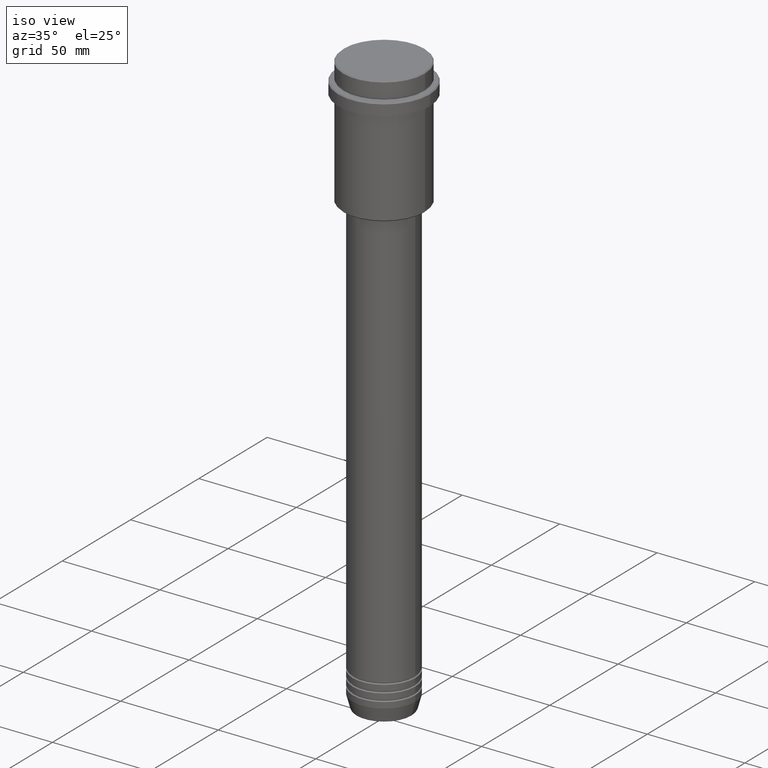
[diagram: clean part render]
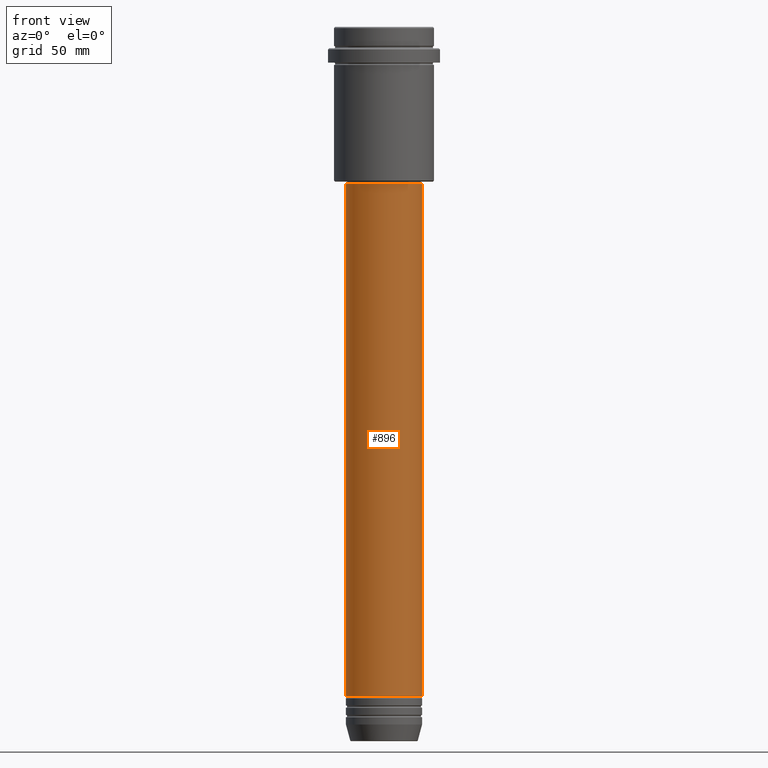
[diagram: tour spotlight — one face highlighted and labeled with its STEP entity id]
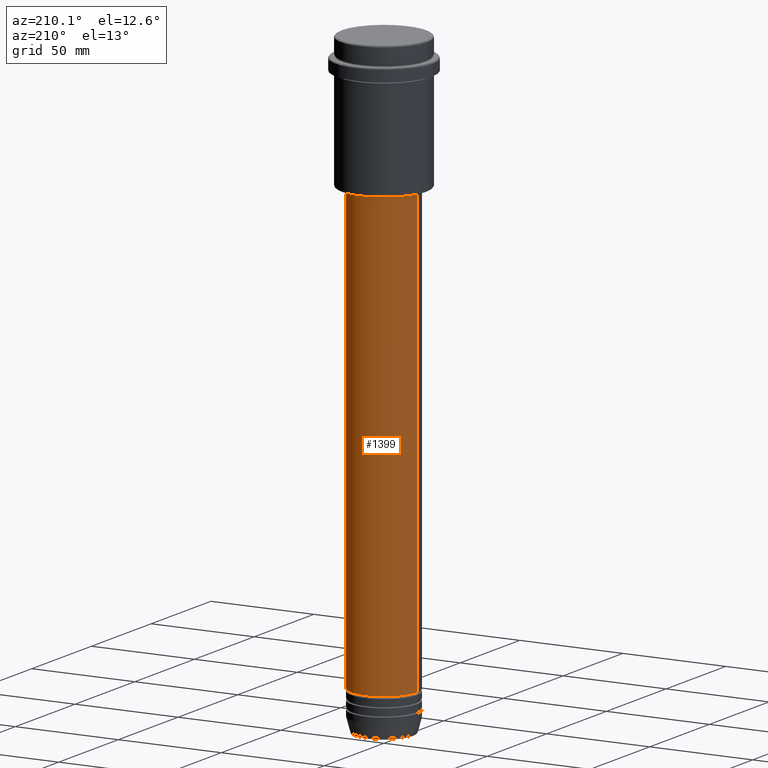
[diagram: tour spotlight — one face highlighted and labeled with its STEP entity id]
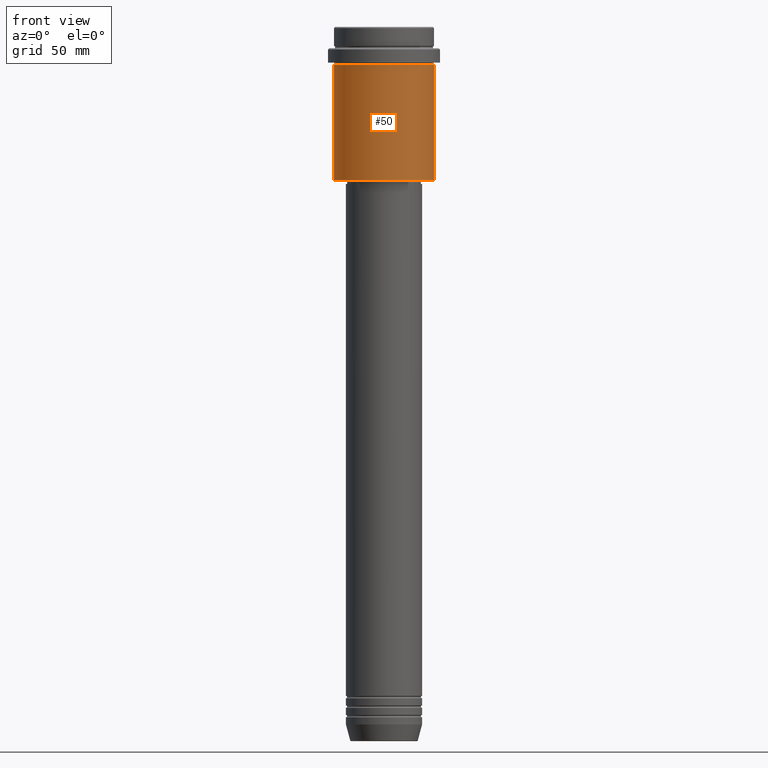
[diagram: tour spotlight — one face highlighted and labeled with its STEP entity id]
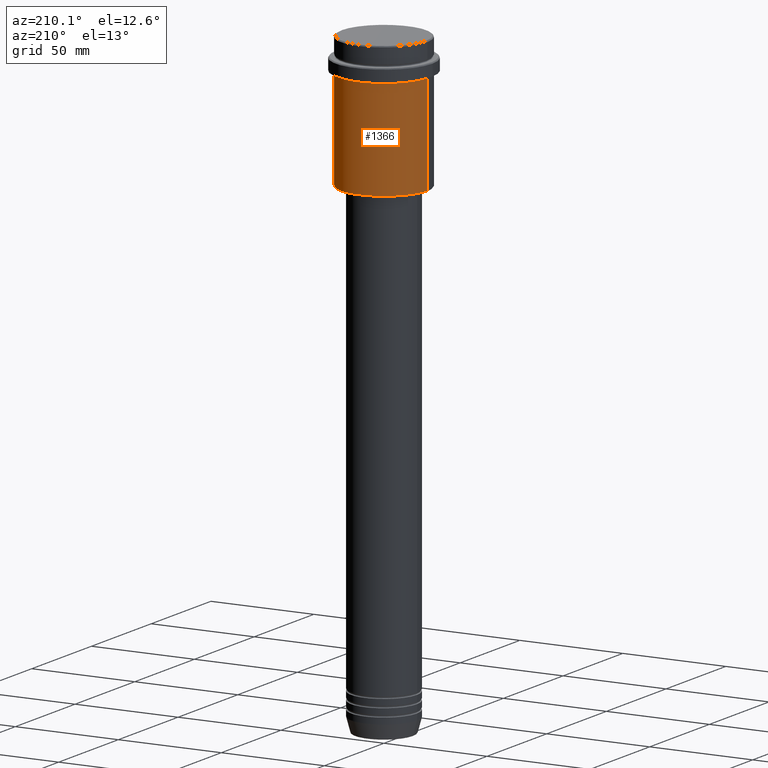
[diagram: tour spotlight — one face highlighted and labeled with its STEP entity id]
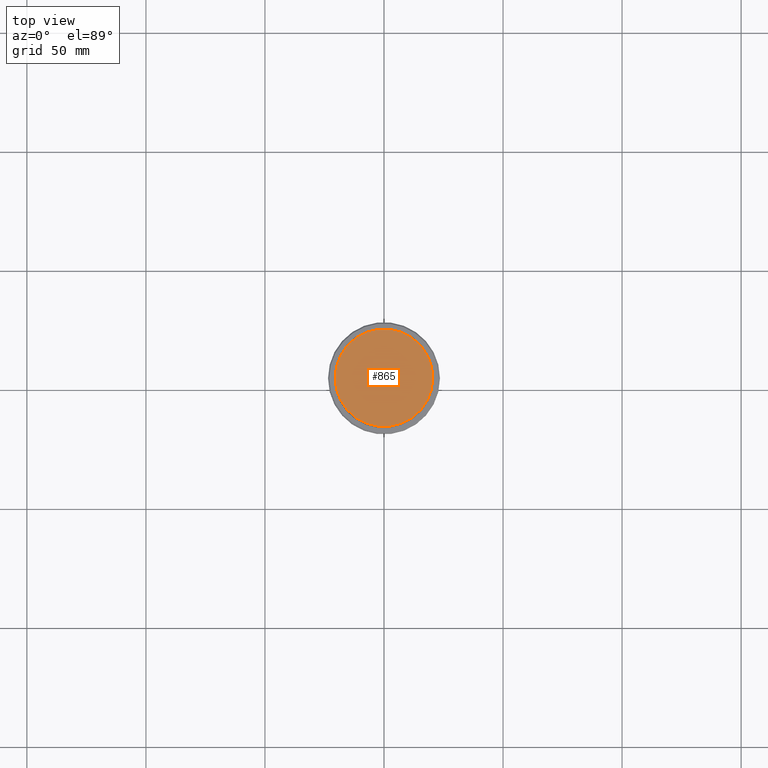
[diagram: tour spotlight — one face highlighted and labeled with its STEP entity id]
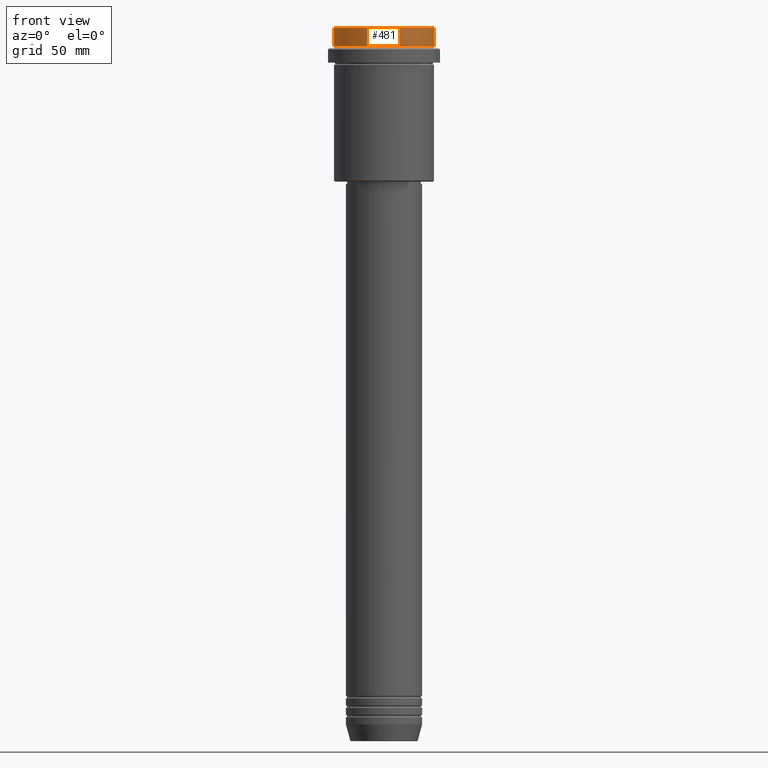
[diagram: tour spotlight — one face highlighted and labeled with its STEP entity id]
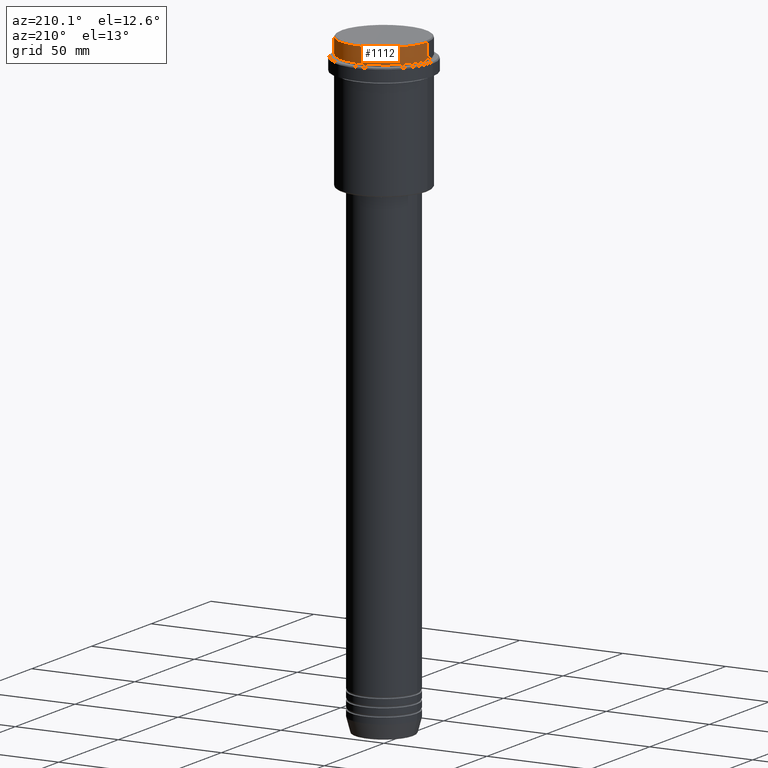
[diagram: tour spotlight — one face highlighted and labeled with its STEP entity id]
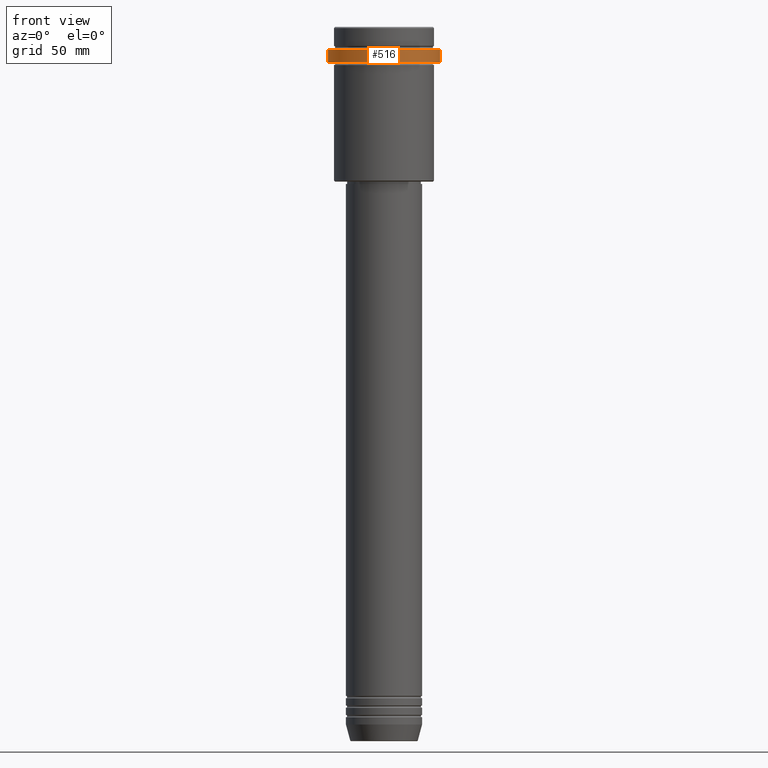
[diagram: tour spotlight — one face highlighted and labeled with its STEP entity id]
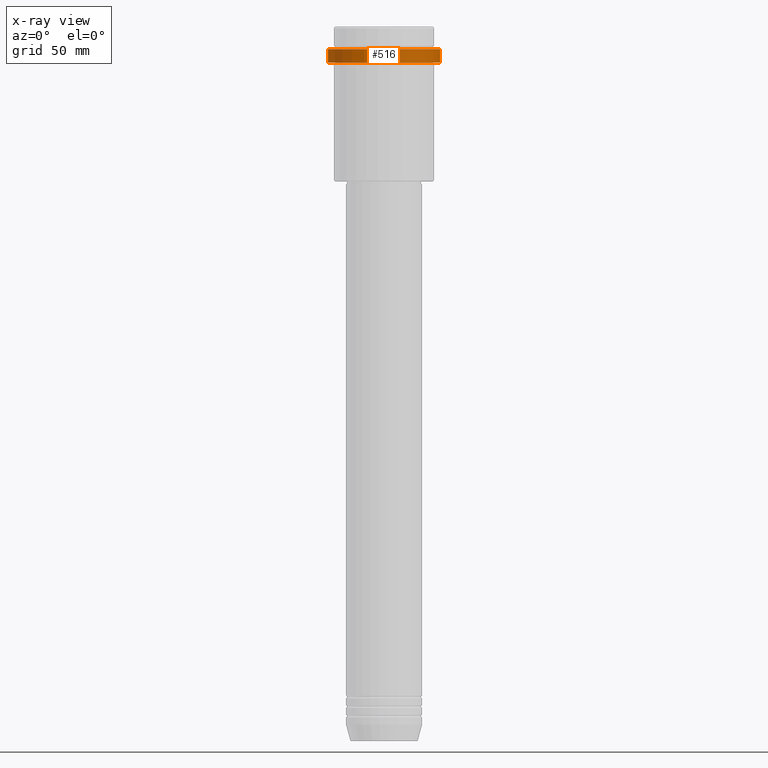
[diagram: x-ray of the same camera — body ghosted, this tour face saturated]
A machine part: a face-by-face anatomy tour. The part has 52 B-rep faces; the first image is the clean iso view, then the 8 largest visible faces are spotlighted one at a time (largest first), each with its STEP entity span.

Face 1 — front view, entity #896. In plain terms, the highlighted cylindrical surface (partial cylindrical patch) has radius 16 mm, axis along (-0, -0, 1).
Definition (entity closure, byte-faithful):
#6 = ORIENTED_EDGE ( 'NONE', *, *, #601, .T. ) ;
#11 = CARTESIAN_POINT ( 'NONE',  ( 0.000000000000000000, 0.000000000000000000, 0.000000000000000000 ) ) ;
#13 = DIRECTION ( 'NONE',  ( -0.000000000000000000, -0.000000000000000000, 1.000000000000000000 ) ) ;
#31 = LINE ( 'NONE', #272, #1325 ) ;
#82 = VERTEX_POINT ( 'NONE', #388 ) ;
#110 = CYLINDRICAL_SURFACE ( 'NONE', #689, 16.00000000000000000 ) ;
#194 = ORIENTED_EDGE ( 'NONE', *, *, #520, .T. ) ;
#216 = DIRECTION ( 'NONE',  ( 1.000000000000000000, 0.000000000000000000, 0.000000000000000000 ) ) ;
#219 = CARTESIAN_POINT ( 'NONE',  ( -16.00000000000000000, 1.959434878635765131E-15, -280.9999999999998863 ) ) ;
#266 = CARTESIAN_POINT ( 'NONE',  ( 0.000000000000000000, 0.000000000000000000, -280.9999999999998863 ) ) ;
#272 = CARTESIAN_POINT ( 'NONE',  ( 16.00000000000000000, 0.000000000000000000, 0.000000000000000000 ) ) ;
#338 = ORIENTED_EDGE ( 'NONE', *, *, #1195, .F. ) ;
#359 = DIRECTION ( 'NONE',  ( 1.000000000000000000, 0.000000000000000000, 0.000000000000000000 ) ) ;
#377 = DIRECTION ( 'NONE',  ( -0.000000000000000000, -0.000000000000000000, 1.000000000000000000 ) ) ;
#388 = CARTESIAN_POINT ( 'NONE',  ( 16.00000000000000000, 0.000000000000000000, -280.9999999999998863 ) ) ;
#415 = CIRCLE ( 'NONE', #887, 16.00000000000000355 ) ;
#445 = CARTESIAN_POINT ( 'NONE',  ( -16.00000000000000355, 1.959434878635765526E-15, -65.99999999999991473 ) ) ;
#451 = EDGE_CURVE ( 'NONE', #912, #847, #415, .T. ) ;
#520 = EDGE_CURVE ( 'NONE', #1293, #82, #1393, .T. ) ;
#576 = DIRECTION ( 'NONE',  ( -0.000000000000000000, -0.000000000000000000, 1.000000000000000000 ) ) ;
#578 = ORIENTED_EDGE ( 'NONE', *, *, #451, .F. ) ;
#601 = EDGE_CURVE ( 'NONE', #82, #847, #31, .T. ) ;
#689 = AXIS2_PLACEMENT_3D ( 'NONE', #11, #1409, #216 ) ;
#741 = CARTESIAN_POINT ( 'NONE',  ( 16.00000000000000355, 0.000000000000000000, -65.99999999999991473 ) ) ;
#847 = VERTEX_POINT ( 'NONE', #741 ) ;
#858 = FACE_OUTER_BOUND ( 'NONE', #1100, .T. ) ;
#887 = AXIS2_PLACEMENT_3D ( 'NONE', #1072, #13, #1064 ) ;
#896 = ADVANCED_FACE ( 'NONE', ( #858 ), #110, .T. ) ;
#912 = VERTEX_POINT ( 'NONE', #445 ) ;
#941 = AXIS2_PLACEMENT_3D ( 'NONE', #266, #576, #359 ) ;
#950 = DIRECTION ( 'NONE',  ( -0.000000000000000000, -0.000000000000000000, 1.000000000000000000 ) ) ;
#1064 = DIRECTION ( 'NONE',  ( 1.000000000000000000, 0.000000000000000000, 0.000000000000000000 ) ) ;
#1072 = CARTESIAN_POINT ( 'NONE',  ( 0.000000000000000000, 0.000000000000000000, -65.99999999999991473 ) ) ;
#1100 = EDGE_LOOP ( 'NONE', ( #338, #194, #6, #578 ) ) ;
#1195 = EDGE_CURVE ( 'NONE', #1293, #912, #1363, .T. ) ;
#1293 = VERTEX_POINT ( 'NONE', #219 ) ;
#1325 = VECTOR ( 'NONE', #377, 1000.000000000000000 ) ;
#1343 = VECTOR ( 'NONE', #950, 1000.000000000000000 ) ;
#1363 = LINE ( 'NONE', #1372, #1343 ) ;
#1372 = CARTESIAN_POINT ( 'NONE',  ( -16.00000000000000000, 1.959434878635765131E-15, 0.000000000000000000 ) ) ;
#1393 = CIRCLE ( 'NONE', #941, 16.00000000000000000 ) ;
#1409 = DIRECTION ( 'NONE',  ( -0.000000000000000000, -0.000000000000000000, 1.000000000000000000 ) ) ;

Face 2 — auxiliary view, entity #1399. In plain terms, the highlighted cylindrical surface (partial cylindrical patch) has radius 16 mm, axis along (-0, -0, 1).
Definition (entity closure, byte-faithful):
#8 = DIRECTION ( 'NONE',  ( 1.000000000000000000, 0.000000000000000000, 0.000000000000000000 ) ) ;
#31 = LINE ( 'NONE', #272, #1325 ) ;
#82 = VERTEX_POINT ( 'NONE', #388 ) ;
#155 = EDGE_LOOP ( 'NONE', ( #275, #524, #1122, #1193 ) ) ;
#191 = CARTESIAN_POINT ( 'NONE',  ( 0.000000000000000000, 0.000000000000000000, -65.99999999999991473 ) ) ;
#193 = CARTESIAN_POINT ( 'NONE',  ( 0.000000000000000000, 0.000000000000000000, -280.9999999999998863 ) ) ;
#219 = CARTESIAN_POINT ( 'NONE',  ( -16.00000000000000000, 1.959434878635765131E-15, -280.9999999999998863 ) ) ;
#231 = CIRCLE ( 'NONE', #1388, 16.00000000000000000 ) ;
#251 = DIRECTION ( 'NONE',  ( -0.000000000000000000, -0.000000000000000000, 1.000000000000000000 ) ) ;
#272 = CARTESIAN_POINT ( 'NONE',  ( 16.00000000000000000, 0.000000000000000000, 0.000000000000000000 ) ) ;
#275 = ORIENTED_EDGE ( 'NONE', *, *, #1139, .T. ) ;
#283 = DIRECTION ( 'NONE',  ( 1.000000000000000000, 0.000000000000000000, 0.000000000000000000 ) ) ;
#307 = EDGE_CURVE ( 'NONE', #847, #912, #821, .T. ) ;
#377 = DIRECTION ( 'NONE',  ( -0.000000000000000000, -0.000000000000000000, 1.000000000000000000 ) ) ;
#388 = CARTESIAN_POINT ( 'NONE',  ( 16.00000000000000000, 0.000000000000000000, -280.9999999999998863 ) ) ;
#444 = CARTESIAN_POINT ( 'NONE',  ( 0.000000000000000000, 0.000000000000000000, 0.000000000000000000 ) ) ;
#445 = CARTESIAN_POINT ( 'NONE',  ( -16.00000000000000355, 1.959434878635765526E-15, -65.99999999999991473 ) ) ;
#524 = ORIENTED_EDGE ( 'NONE', *, *, #1195, .T. ) ;
#601 = EDGE_CURVE ( 'NONE', #82, #847, #31, .T. ) ;
#606 = AXIS2_PLACEMENT_3D ( 'NONE', #444, #251, #8 ) ;
#613 = DIRECTION ( 'NONE',  ( -0.000000000000000000, -0.000000000000000000, 1.000000000000000000 ) ) ;
#645 = FACE_OUTER_BOUND ( 'NONE', #155, .T. ) ;
#732 = DIRECTION ( 'NONE',  ( 1.000000000000000000, 0.000000000000000000, 0.000000000000000000 ) ) ;
#741 = CARTESIAN_POINT ( 'NONE',  ( 16.00000000000000355, 0.000000000000000000, -65.99999999999991473 ) ) ;
#821 = CIRCLE ( 'NONE', #1144, 16.00000000000000355 ) ;
#847 = VERTEX_POINT ( 'NONE', #741 ) ;
#912 = VERTEX_POINT ( 'NONE', #445 ) ;
#950 = DIRECTION ( 'NONE',  ( -0.000000000000000000, -0.000000000000000000, 1.000000000000000000 ) ) ;
#1122 = ORIENTED_EDGE ( 'NONE', *, *, #307, .F. ) ;
#1139 = EDGE_CURVE ( 'NONE', #82, #1293, #231, .T. ) ;
#1144 = AXIS2_PLACEMENT_3D ( 'NONE', #191, #1252, #283 ) ;
#1193 = ORIENTED_EDGE ( 'NONE', *, *, #601, .F. ) ;
#1195 = EDGE_CURVE ( 'NONE', #1293, #912, #1363, .T. ) ;
#1252 = DIRECTION ( 'NONE',  ( -0.000000000000000000, -0.000000000000000000, 1.000000000000000000 ) ) ;
#1293 = VERTEX_POINT ( 'NONE', #219 ) ;
#1325 = VECTOR ( 'NONE', #377, 1000.000000000000000 ) ;
#1343 = VECTOR ( 'NONE', #950, 1000.000000000000000 ) ;
#1363 = LINE ( 'NONE', #1372, #1343 ) ;
#1372 = CARTESIAN_POINT ( 'NONE',  ( -16.00000000000000000, 1.959434878635765131E-15, 0.000000000000000000 ) ) ;
#1388 = AXIS2_PLACEMENT_3D ( 'NONE', #193, #613, #732 ) ;
#1399 = ADVANCED_FACE ( 'NONE', ( #645 ), #1417, .T. ) ;
#1417 = CYLINDRICAL_SURFACE ( 'NONE', #606, 16.00000000000000000 ) ;

Face 3 — front view, entity #50. In plain terms, the highlighted cylindrical surface (partial cylindrical patch) has radius 21 mm, axis along (-0, -0, 1).
Definition (entity closure, byte-faithful):
#27 = EDGE_LOOP ( 'NONE', ( #990, #87, #1222, #1129 ) ) ;
#50 = ADVANCED_FACE ( 'NONE', ( #1291 ), #646, .T. ) ;
#87 = ORIENTED_EDGE ( 'NONE', *, *, #881, .T. ) ;
#128 = CARTESIAN_POINT ( 'NONE',  ( 20.99999999999999645, 0.000000000000000000, -16.00000000000000355 ) ) ;
#141 = VECTOR ( 'NONE', #427, 1000.000000000000000 ) ;
#205 = CARTESIAN_POINT ( 'NONE',  ( 0.000000000000000000, 0.000000000000000000, 0.000000000000000000 ) ) ;
#335 = DIRECTION ( 'NONE',  ( -1.000000000000000000, 0.000000000000000000, 0.000000000000000000 ) ) ;
#424 = AXIS2_PLACEMENT_3D ( 'NONE', #658, #1280, #335 ) ;
#427 = DIRECTION ( 'NONE',  ( -0.000000000000000000, -0.000000000000000000, 1.000000000000000000 ) ) ;
#446 = CIRCLE ( 'NONE', #424, 20.99999999999999645 ) ;
#455 = VERTEX_POINT ( 'NONE', #994 ) ;
#508 = DIRECTION ( 'NONE',  ( 1.000000000000000000, 0.000000000000000000, 0.000000000000000000 ) ) ;
#538 = CARTESIAN_POINT ( 'NONE',  ( -20.99999999999999645, 2.571758278209441267E-15, 0.000000000000000000 ) ) ;
#554 = DIRECTION ( 'NONE',  ( 1.000000000000000000, 0.000000000000000000, 0.000000000000000000 ) ) ;
#597 = LINE ( 'NONE', #1037, #1187 ) ;
#641 = CARTESIAN_POINT ( 'NONE',  ( 20.99999999999999645, 0.000000000000000000, -64.49999999999992895 ) ) ;
#646 = CYLINDRICAL_SURFACE ( 'NONE', #1273, 20.99999999999999645 ) ;
#658 = CARTESIAN_POINT ( 'NONE',  ( 0.000000000000000000, 0.000000000000000000, -64.49999999999992895 ) ) ;
#692 = CARTESIAN_POINT ( 'NONE',  ( -20.99999999999999645, 2.571758278209441267E-15, -64.49999999999992895 ) ) ;
#701 = CARTESIAN_POINT ( 'NONE',  ( 0.000000000000000000, 0.000000000000000000, -16.00000000000000355 ) ) ;
#709 = DIRECTION ( 'NONE',  ( -0.000000000000000000, -0.000000000000000000, 1.000000000000000000 ) ) ;
#779 = EDGE_CURVE ( 'NONE', #782, #946, #597, .T. ) ;
#782 = VERTEX_POINT ( 'NONE', #641 ) ;
#881 = EDGE_CURVE ( 'NONE', #1071, #782, #446, .T. ) ;
#930 = DIRECTION ( 'NONE',  ( -0.000000000000000000, -0.000000000000000000, 1.000000000000000000 ) ) ;
#946 = VERTEX_POINT ( 'NONE', #128 ) ;
#978 = DIRECTION ( 'NONE',  ( -0.000000000000000000, -0.000000000000000000, 1.000000000000000000 ) ) ;
#990 = ORIENTED_EDGE ( 'NONE', *, *, #1313, .F. ) ;
#994 = CARTESIAN_POINT ( 'NONE',  ( -20.99999999999999645, 2.571758278209441267E-15, -16.00000000000000355 ) ) ;
#999 = CIRCLE ( 'NONE', #1405, 20.99999999999999645 ) ;
#1037 = CARTESIAN_POINT ( 'NONE',  ( 20.99999999999999645, 0.000000000000000000, 0.000000000000000000 ) ) ;
#1071 = VERTEX_POINT ( 'NONE', #692 ) ;
#1129 = ORIENTED_EDGE ( 'NONE', *, *, #1214, .F. ) ;
#1187 = VECTOR ( 'NONE', #930, 1000.000000000000000 ) ;
#1214 = EDGE_CURVE ( 'NONE', #455, #946, #999, .T. ) ;
#1222 = ORIENTED_EDGE ( 'NONE', *, *, #779, .T. ) ;
#1273 = AXIS2_PLACEMENT_3D ( 'NONE', #205, #978, #554 ) ;
#1279 = LINE ( 'NONE', #538, #141 ) ;
#1280 = DIRECTION ( 'NONE',  ( -0.000000000000000000, -0.000000000000000000, 1.000000000000000000 ) ) ;
#1291 = FACE_OUTER_BOUND ( 'NONE', #27, .T. ) ;
#1313 = EDGE_CURVE ( 'NONE', #1071, #455, #1279, .T. ) ;
#1405 = AXIS2_PLACEMENT_3D ( 'NONE', #701, #709, #508 ) ;

Face 4 — auxiliary view, entity #1366. In plain terms, the highlighted cylindrical surface (partial cylindrical patch) has radius 21 mm, axis along (-0, -0, 1).
Definition (entity closure, byte-faithful):
#28 = DIRECTION ( 'NONE',  ( -1.000000000000000000, 0.000000000000000000, 0.000000000000000000 ) ) ;
#44 = CARTESIAN_POINT ( 'NONE',  ( 0.000000000000000000, 0.000000000000000000, -16.00000000000000355 ) ) ;
#93 = CYLINDRICAL_SURFACE ( 'NONE', #500, 20.99999999999999645 ) ;
#128 = CARTESIAN_POINT ( 'NONE',  ( 20.99999999999999645, 0.000000000000000000, -16.00000000000000355 ) ) ;
#141 = VECTOR ( 'NONE', #427, 1000.000000000000000 ) ;
#317 = AXIS2_PLACEMENT_3D ( 'NONE', #44, #908, #918 ) ;
#343 = ORIENTED_EDGE ( 'NONE', *, *, #779, .F. ) ;
#366 = EDGE_LOOP ( 'NONE', ( #1221, #1213, #1013, #343 ) ) ;
#427 = DIRECTION ( 'NONE',  ( -0.000000000000000000, -0.000000000000000000, 1.000000000000000000 ) ) ;
#455 = VERTEX_POINT ( 'NONE', #994 ) ;
#500 = AXIS2_PLACEMENT_3D ( 'NONE', #1299, #851, #530 ) ;
#530 = DIRECTION ( 'NONE',  ( 1.000000000000000000, 0.000000000000000000, 0.000000000000000000 ) ) ;
#538 = CARTESIAN_POINT ( 'NONE',  ( -20.99999999999999645, 2.571758278209441267E-15, 0.000000000000000000 ) ) ;
#569 = CIRCLE ( 'NONE', #885, 20.99999999999999645 ) ;
#597 = LINE ( 'NONE', #1037, #1187 ) ;
#641 = CARTESIAN_POINT ( 'NONE',  ( 20.99999999999999645, 0.000000000000000000, -64.49999999999992895 ) ) ;
#692 = CARTESIAN_POINT ( 'NONE',  ( -20.99999999999999645, 2.571758278209441267E-15, -64.49999999999992895 ) ) ;
#696 = CIRCLE ( 'NONE', #317, 20.99999999999999645 ) ;
#779 = EDGE_CURVE ( 'NONE', #782, #946, #597, .T. ) ;
#782 = VERTEX_POINT ( 'NONE', #641 ) ;
#851 = DIRECTION ( 'NONE',  ( -0.000000000000000000, -0.000000000000000000, 1.000000000000000000 ) ) ;
#878 = CARTESIAN_POINT ( 'NONE',  ( 0.000000000000000000, 0.000000000000000000, -64.49999999999992895 ) ) ;
#885 = AXIS2_PLACEMENT_3D ( 'NONE', #878, #888, #28 ) ;
#888 = DIRECTION ( 'NONE',  ( -0.000000000000000000, -0.000000000000000000, 1.000000000000000000 ) ) ;
#908 = DIRECTION ( 'NONE',  ( -0.000000000000000000, -0.000000000000000000, 1.000000000000000000 ) ) ;
#918 = DIRECTION ( 'NONE',  ( 1.000000000000000000, 0.000000000000000000, 0.000000000000000000 ) ) ;
#930 = DIRECTION ( 'NONE',  ( -0.000000000000000000, -0.000000000000000000, 1.000000000000000000 ) ) ;
#946 = VERTEX_POINT ( 'NONE', #128 ) ;
#994 = CARTESIAN_POINT ( 'NONE',  ( -20.99999999999999645, 2.571758278209441267E-15, -16.00000000000000355 ) ) ;
#1013 = ORIENTED_EDGE ( 'NONE', *, *, #1035, .F. ) ;
#1035 = EDGE_CURVE ( 'NONE', #946, #455, #696, .T. ) ;
#1037 = CARTESIAN_POINT ( 'NONE',  ( 20.99999999999999645, 0.000000000000000000, 0.000000000000000000 ) ) ;
#1071 = VERTEX_POINT ( 'NONE', #692 ) ;
#1075 = FACE_OUTER_BOUND ( 'NONE', #366, .T. ) ;
#1187 = VECTOR ( 'NONE', #930, 1000.000000000000000 ) ;
#1213 = ORIENTED_EDGE ( 'NONE', *, *, #1313, .T. ) ;
#1221 = ORIENTED_EDGE ( 'NONE', *, *, #1404, .T. ) ;
#1279 = LINE ( 'NONE', #538, #141 ) ;
#1299 = CARTESIAN_POINT ( 'NONE',  ( 0.000000000000000000, 0.000000000000000000, 0.000000000000000000 ) ) ;
#1313 = EDGE_CURVE ( 'NONE', #1071, #455, #1279, .T. ) ;
#1366 = ADVANCED_FACE ( 'NONE', ( #1075 ), #93, .T. ) ;
#1404 = EDGE_CURVE ( 'NONE', #782, #1071, #569, .T. ) ;

Face 5 — top view, entity #865. In plain terms, the highlighted planar face has unit normal (0, -0, 1).
Definition (entity closure, byte-faithful):
#2 = DIRECTION ( 'NONE',  ( 1.000000000000000000, 0.000000000000000000, 0.000000000000000000 ) ) ;
#156 = ORIENTED_EDGE ( 'NONE', *, *, #797, .T. ) ;
#177 = DIRECTION ( 'NONE',  ( 1.000000000000000000, 0.000000000000000000, 0.000000000000000000 ) ) ;
#268 = EDGE_CURVE ( 'NONE', #1109, #743, #1294, .T. ) ;
#328 = FACE_OUTER_BOUND ( 'NONE', #562, .T. ) ;
#347 = ORIENTED_EDGE ( 'NONE', *, *, #268, .T. ) ;
#425 = CARTESIAN_POINT ( 'NONE',  ( 0.000000000000000000, 0.000000000000000000, 0.000000000000000000 ) ) ;
#472 = AXIS2_PLACEMENT_3D ( 'NONE', #766, #750, #549 ) ;
#549 = DIRECTION ( 'NONE',  ( 1.000000000000000000, 0.000000000000000000, 0.000000000000000000 ) ) ;
#551 = AXIS2_PLACEMENT_3D ( 'NONE', #425, #559, #2 ) ;
#559 = DIRECTION ( 'NONE',  ( -0.000000000000000000, -0.000000000000000000, 1.000000000000000000 ) ) ;
#562 = EDGE_LOOP ( 'NONE', ( #156, #347 ) ) ;
#609 = AXIS2_PLACEMENT_3D ( 'NONE', #829, #808, #177 ) ;
#687 = CARTESIAN_POINT ( 'NONE',  ( 20.50000000000001776, 2.541142108230758663E-15, 0.000000000000000000 ) ) ;
#743 = VERTEX_POINT ( 'NONE', #945 ) ;
#750 = DIRECTION ( 'NONE',  ( 0.000000000000000000, -0.000000000000000000, 1.000000000000000000 ) ) ;
#766 = CARTESIAN_POINT ( 'NONE',  ( 0.000000000000000000, 0.000000000000000000, 0.000000000000000000 ) ) ;
#797 = EDGE_CURVE ( 'NONE', #743, #1109, #983, .T. ) ;
#808 = DIRECTION ( 'NONE',  ( -0.000000000000000000, -0.000000000000000000, 1.000000000000000000 ) ) ;
#829 = CARTESIAN_POINT ( 'NONE',  ( 0.000000000000000000, 0.000000000000000000, 0.000000000000000000 ) ) ;
#865 = ADVANCED_FACE ( 'NONE', ( #328 ), #1301, .T. ) ;
#945 = CARTESIAN_POINT ( 'NONE',  ( -20.50000000000001776, 0.000000000000000000, 0.000000000000000000 ) ) ;
#983 = CIRCLE ( 'NONE', #551, 20.50000000000001776 ) ;
#1109 = VERTEX_POINT ( 'NONE', #687 ) ;
#1294 = CIRCLE ( 'NONE', #609, 20.50000000000001776 ) ;
#1301 = PLANE ( 'NONE',  #472 ) ;

Face 6 — front view, entity #481. In plain terms, the highlighted cylindrical surface (partial cylindrical patch) has radius 21 mm, axis along (-0, -0, 1).
Definition (entity closure, byte-faithful):
#5 = DIRECTION ( 'NONE',  ( 1.000000000000000000, 0.000000000000000000, 0.000000000000000000 ) ) ;
#7 = ORIENTED_EDGE ( 'NONE', *, *, #755, .F. ) ;
#60 = VERTEX_POINT ( 'NONE', #1385 ) ;
#79 = LINE ( 'NONE', #517, #260 ) ;
#91 = VECTOR ( 'NONE', #224, 1000.000000000000000 ) ;
#129 = FACE_OUTER_BOUND ( 'NONE', #568, .T. ) ;
#224 = DIRECTION ( 'NONE',  ( -0.000000000000000000, -0.000000000000000000, 1.000000000000000000 ) ) ;
#260 = VECTOR ( 'NONE', #951, 1000.000000000000000 ) ;
#277 = CIRCLE ( 'NONE', #1073, 20.99999999999999645 ) ;
#329 = CIRCLE ( 'NONE', #1296, 20.99999999999999645 ) ;
#363 = CARTESIAN_POINT ( 'NONE',  ( 20.99999999999999645, 0.000000000000000000, -7.999999999999998224 ) ) ;
#369 = DIRECTION ( 'NONE',  ( 1.000000000000000000, 0.000000000000000000, 0.000000000000000000 ) ) ;
#390 = DIRECTION ( 'NONE',  ( 1.000000000000000000, 0.000000000000000000, 0.000000000000000000 ) ) ;
#481 = ADVANCED_FACE ( 'NONE', ( #129 ), #561, .T. ) ;
#517 = CARTESIAN_POINT ( 'NONE',  ( -20.99999999999999645, 2.571758278209441267E-15, 0.000000000000000000 ) ) ;
#542 = CARTESIAN_POINT ( 'NONE',  ( 0.000000000000000000, 0.000000000000000000, 0.000000000000000000 ) ) ;
#561 = CYLINDRICAL_SURFACE ( 'NONE', #1295, 20.99999999999999645 ) ;
#568 = EDGE_LOOP ( 'NONE', ( #7, #876, #659, #915 ) ) ;
#595 = VERTEX_POINT ( 'NONE', #1126 ) ;
#659 = ORIENTED_EDGE ( 'NONE', *, *, #1394, .T. ) ;
#672 = VERTEX_POINT ( 'NONE', #1070 ) ;
#715 = EDGE_CURVE ( 'NONE', #60, #595, #329, .T. ) ;
#719 = CARTESIAN_POINT ( 'NONE',  ( 0.000000000000000000, 0.000000000000000000, -0.4999999999999518718 ) ) ;
#755 = EDGE_CURVE ( 'NONE', #672, #595, #79, .T. ) ;
#855 = LINE ( 'NONE', #1192, #91 ) ;
#876 = ORIENTED_EDGE ( 'NONE', *, *, #1084, .T. ) ;
#915 = ORIENTED_EDGE ( 'NONE', *, *, #715, .T. ) ;
#939 = DIRECTION ( 'NONE',  ( 0.000000000000000000, 0.000000000000000000, -1.000000000000000000 ) ) ;
#951 = DIRECTION ( 'NONE',  ( -0.000000000000000000, -0.000000000000000000, 1.000000000000000000 ) ) ;
#974 = VERTEX_POINT ( 'NONE', #363 ) ;
#1070 = CARTESIAN_POINT ( 'NONE',  ( -20.99999999999999645, 2.571758278209441267E-15, -7.999999999999998224 ) ) ;
#1073 = AXIS2_PLACEMENT_3D ( 'NONE', #1243, #1124, #369 ) ;
#1084 = EDGE_CURVE ( 'NONE', #672, #974, #277, .T. ) ;
#1124 = DIRECTION ( 'NONE',  ( -0.000000000000000000, -0.000000000000000000, 1.000000000000000000 ) ) ;
#1126 = CARTESIAN_POINT ( 'NONE',  ( -20.99999999999999645, 2.571758278209441267E-15, -0.4999999999999518718 ) ) ;
#1192 = CARTESIAN_POINT ( 'NONE',  ( 20.99999999999999645, 0.000000000000000000, 0.000000000000000000 ) ) ;
#1243 = CARTESIAN_POINT ( 'NONE',  ( 0.000000000000000000, 0.000000000000000000, -7.999999999999998224 ) ) ;
#1295 = AXIS2_PLACEMENT_3D ( 'NONE', #542, #1412, #5 ) ;
#1296 = AXIS2_PLACEMENT_3D ( 'NONE', #719, #939, #390 ) ;
#1385 = CARTESIAN_POINT ( 'NONE',  ( 20.99999999999999645, 0.000000000000000000, -0.4999999999999518718 ) ) ;
#1394 = EDGE_CURVE ( 'NONE', #974, #60, #855, .T. ) ;
#1412 = DIRECTION ( 'NONE',  ( -0.000000000000000000, -0.000000000000000000, 1.000000000000000000 ) ) ;

Face 7 — auxiliary view, entity #1112. In plain terms, the highlighted cylindrical surface (partial cylindrical patch) has radius 21 mm, axis along (-0, -0, 1).
Definition (entity closure, byte-faithful):
#1 = DIRECTION ( 'NONE',  ( 0.000000000000000000, 0.000000000000000000, -1.000000000000000000 ) ) ;
#35 = ORIENTED_EDGE ( 'NONE', *, *, #97, .T. ) ;
#39 = EDGE_CURVE ( 'NONE', #595, #60, #144, .T. ) ;
#60 = VERTEX_POINT ( 'NONE', #1385 ) ;
#79 = LINE ( 'NONE', #517, #260 ) ;
#91 = VECTOR ( 'NONE', #224, 1000.000000000000000 ) ;
#97 = EDGE_CURVE ( 'NONE', #974, #672, #654, .T. ) ;
#109 = CARTESIAN_POINT ( 'NONE',  ( 0.000000000000000000, 0.000000000000000000, -0.4999999999999518718 ) ) ;
#114 = AXIS2_PLACEMENT_3D ( 'NONE', #458, #1328, #295 ) ;
#130 = ORIENTED_EDGE ( 'NONE', *, *, #39, .T. ) ;
#144 = CIRCLE ( 'NONE', #302, 20.99999999999999645 ) ;
#149 = FACE_OUTER_BOUND ( 'NONE', #593, .T. ) ;
#224 = DIRECTION ( 'NONE',  ( -0.000000000000000000, -0.000000000000000000, 1.000000000000000000 ) ) ;
#260 = VECTOR ( 'NONE', #951, 1000.000000000000000 ) ;
#271 = CYLINDRICAL_SURFACE ( 'NONE', #114, 20.99999999999999645 ) ;
#295 = DIRECTION ( 'NONE',  ( 1.000000000000000000, 0.000000000000000000, 0.000000000000000000 ) ) ;
#302 = AXIS2_PLACEMENT_3D ( 'NONE', #109, #1, #1408 ) ;
#322 = DIRECTION ( 'NONE',  ( -0.000000000000000000, -0.000000000000000000, 1.000000000000000000 ) ) ;
#363 = CARTESIAN_POINT ( 'NONE',  ( 20.99999999999999645, 0.000000000000000000, -7.999999999999998224 ) ) ;
#421 = DIRECTION ( 'NONE',  ( 1.000000000000000000, 0.000000000000000000, 0.000000000000000000 ) ) ;
#458 = CARTESIAN_POINT ( 'NONE',  ( 0.000000000000000000, 0.000000000000000000, 0.000000000000000000 ) ) ;
#517 = CARTESIAN_POINT ( 'NONE',  ( -20.99999999999999645, 2.571758278209441267E-15, 0.000000000000000000 ) ) ;
#593 = EDGE_LOOP ( 'NONE', ( #35, #742, #130, #1378 ) ) ;
#595 = VERTEX_POINT ( 'NONE', #1126 ) ;
#654 = CIRCLE ( 'NONE', #938, 20.99999999999999645 ) ;
#672 = VERTEX_POINT ( 'NONE', #1070 ) ;
#742 = ORIENTED_EDGE ( 'NONE', *, *, #755, .T. ) ;
#755 = EDGE_CURVE ( 'NONE', #672, #595, #79, .T. ) ;
#855 = LINE ( 'NONE', #1192, #91 ) ;
#938 = AXIS2_PLACEMENT_3D ( 'NONE', #962, #322, #421 ) ;
#951 = DIRECTION ( 'NONE',  ( -0.000000000000000000, -0.000000000000000000, 1.000000000000000000 ) ) ;
#962 = CARTESIAN_POINT ( 'NONE',  ( 0.000000000000000000, 0.000000000000000000, -7.999999999999998224 ) ) ;
#974 = VERTEX_POINT ( 'NONE', #363 ) ;
#1070 = CARTESIAN_POINT ( 'NONE',  ( -20.99999999999999645, 2.571758278209441267E-15, -7.999999999999998224 ) ) ;
#1112 = ADVANCED_FACE ( 'NONE', ( #149 ), #271, .T. ) ;
#1126 = CARTESIAN_POINT ( 'NONE',  ( -20.99999999999999645, 2.571758278209441267E-15, -0.4999999999999518718 ) ) ;
#1192 = CARTESIAN_POINT ( 'NONE',  ( 20.99999999999999645, 0.000000000000000000, 0.000000000000000000 ) ) ;
#1328 = DIRECTION ( 'NONE',  ( -0.000000000000000000, -0.000000000000000000, 1.000000000000000000 ) ) ;
#1378 = ORIENTED_EDGE ( 'NONE', *, *, #1394, .F. ) ;
#1385 = CARTESIAN_POINT ( 'NONE',  ( 20.99999999999999645, 0.000000000000000000, -0.4999999999999518718 ) ) ;
#1394 = EDGE_CURVE ( 'NONE', #974, #60, #855, .T. ) ;
#1408 = DIRECTION ( 'NONE',  ( 1.000000000000000000, 0.000000000000000000, 0.000000000000000000 ) ) ;

Face 8 — front view, entity #516. An x-ray twin of the same camera follows (body ghosted, this face saturated) — the face is partly hidden behind the body. In plain terms, the highlighted cylindrical surface (partial cylindrical patch) has radius 23.5 mm, axis along (-0, -0, 1).
Definition (entity closure, byte-faithful):
#33 = EDGE_CURVE ( 'NONE', #420, #1198, #1206, .T. ) ;
#46 = DIRECTION ( 'NONE',  ( -0.000000000000000000, -0.000000000000000000, 1.000000000000000000 ) ) ;
#104 = DIRECTION ( 'NONE',  ( -0.000000000000000000, -0.000000000000000000, 1.000000000000000000 ) ) ;
#116 = DIRECTION ( 'NONE',  ( 1.000000000000000000, 0.000000000000000000, 0.000000000000000000 ) ) ;
#135 = LINE ( 'NONE', #1220, #1275 ) ;
#234 = CARTESIAN_POINT ( 'NONE',  ( 0.000000000000000000, 0.000000000000000000, -9.499999999999946709 ) ) ;
#243 = CARTESIAN_POINT ( 'NONE',  ( -23.50000000000000711, 2.877919977996281109E-15, -15.00000000000000178 ) ) ;
#330 = VERTEX_POINT ( 'NONE', #384 ) ;
#384 = CARTESIAN_POINT ( 'NONE',  ( -23.50000000000000000, 2.877919977996280320E-15, -9.499999999999946709 ) ) ;
#420 = VERTEX_POINT ( 'NONE', #243 ) ;
#429 = EDGE_LOOP ( 'NONE', ( #751, #1089, #995, #631 ) ) ;
#479 = CARTESIAN_POINT ( 'NONE',  ( 0.000000000000000000, 0.000000000000000000, 0.000000000000000000 ) ) ;
#485 = AXIS2_PLACEMENT_3D ( 'NONE', #531, #104, #116 ) ;
#512 = EDGE_CURVE ( 'NONE', #1198, #666, #1249, .T. ) ;
#516 = ADVANCED_FACE ( 'NONE', ( #581 ), #585, .T. ) ;
#531 = CARTESIAN_POINT ( 'NONE',  ( 0.000000000000000000, 0.000000000000000000, -15.00000000000000178 ) ) ;
#544 = EDGE_CURVE ( 'NONE', #420, #330, #135, .T. ) ;
#581 = FACE_OUTER_BOUND ( 'NONE', #429, .T. ) ;
#585 = CYLINDRICAL_SURFACE ( 'NONE', #705, 23.50000000000000000 ) ;
#631 = ORIENTED_EDGE ( 'NONE', *, *, #932, .T. ) ;
#664 = CARTESIAN_POINT ( 'NONE',  ( 23.50000000000000000, 0.000000000000000000, 0.000000000000000000 ) ) ;
#666 = VERTEX_POINT ( 'NONE', #1395 ) ;
#683 = DIRECTION ( 'NONE',  ( -0.000000000000000000, -0.000000000000000000, 1.000000000000000000 ) ) ;
#688 = DIRECTION ( 'NONE',  ( -0.000000000000000000, -0.000000000000000000, 1.000000000000000000 ) ) ;
#705 = AXIS2_PLACEMENT_3D ( 'NONE', #479, #688, #1137 ) ;
#751 = ORIENTED_EDGE ( 'NONE', *, *, #544, .F. ) ;
#932 = EDGE_CURVE ( 'NONE', #666, #330, #1262, .T. ) ;
#985 = DIRECTION ( 'NONE',  ( 1.000000000000000000, 0.000000000000000000, 0.000000000000000000 ) ) ;
#995 = ORIENTED_EDGE ( 'NONE', *, *, #512, .T. ) ;
#1079 = VECTOR ( 'NONE', #683, 1000.000000000000000 ) ;
#1089 = ORIENTED_EDGE ( 'NONE', *, *, #33, .T. ) ;
#1137 = DIRECTION ( 'NONE',  ( 1.000000000000000000, 0.000000000000000000, 0.000000000000000000 ) ) ;
#1184 = DIRECTION ( 'NONE',  ( 0.000000000000000000, 0.000000000000000000, -1.000000000000000000 ) ) ;
#1198 = VERTEX_POINT ( 'NONE', #1261 ) ;
#1206 = CIRCLE ( 'NONE', #485, 23.50000000000000355 ) ;
#1220 = CARTESIAN_POINT ( 'NONE',  ( -23.50000000000000000, 2.877919977996280320E-15, 0.000000000000000000 ) ) ;
#1242 = AXIS2_PLACEMENT_3D ( 'NONE', #234, #1184, #985 ) ;
#1249 = LINE ( 'NONE', #664, #1079 ) ;
#1261 = CARTESIAN_POINT ( 'NONE',  ( 23.50000000000000355, 0.000000000000000000, -15.00000000000000178 ) ) ;
#1262 = CIRCLE ( 'NONE', #1242, 23.50000000000000000 ) ;
#1275 = VECTOR ( 'NONE', #46, 1000.000000000000000 ) ;
#1395 = CARTESIAN_POINT ( 'NONE',  ( 23.50000000000000000, 0.000000000000000000, -9.499999999999946709 ) ) ;